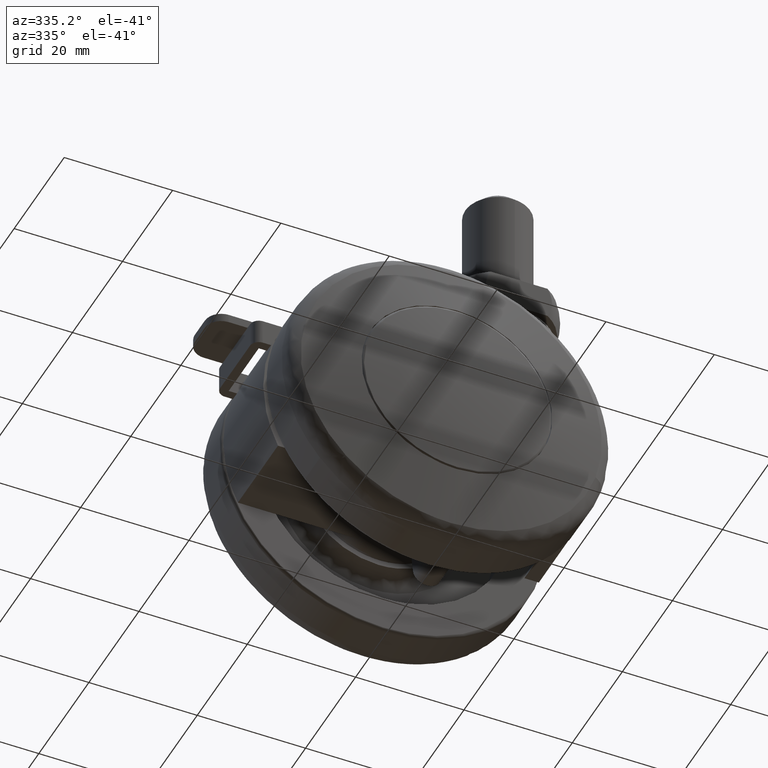
[diagram: clean part render]
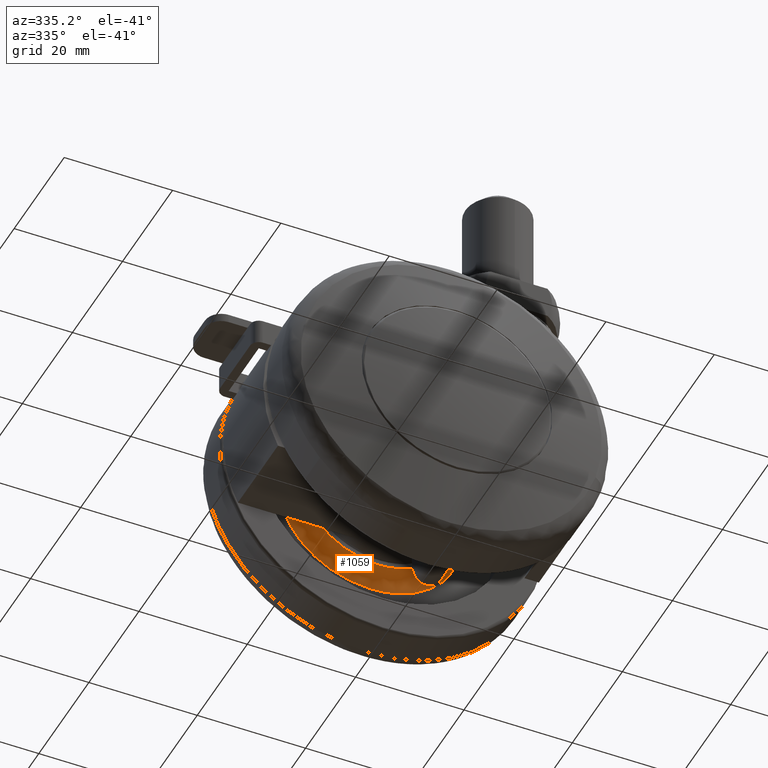
[diagram: same view with one face highlighted and labeled with its STEP entity id]
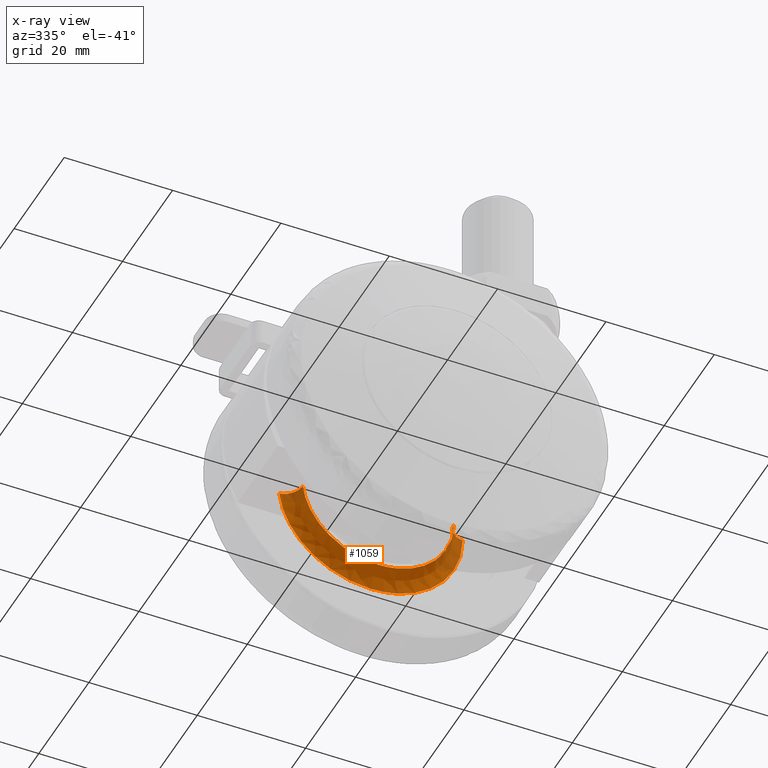
[diagram: x-ray of the same camera — body ghosted, the highlighted face saturated]
A machine part, auxiliary view. The second image highlights one B-rep face of the part: STEP entity #1059.
The next image is the same camera in x-ray: the body ghosted, the highlighted face saturated — about 15% of this face is hidden behind the body in this view.
In plain terms, the highlighted face is a freeform B-spline surface patch.
Its self-contained STEP definition (entity closure, byte-faithful):
#879=CARTESIAN_POINT('',(13.906362942982289,-11.000000000126439,-1.616499210655181));
#880=VERTEX_POINT('',#879);
#898=CARTESIAN_POINT('',(-14.0,-11.000000000116350,-8.674979E-016));
#899=VERTEX_POINT('',#898);
#913=CARTESIAN_POINT('',(-16.999999999257060,-14.0,1.051998E-014));
#914=VERTEX_POINT('',#913);
#915=CARTESIAN_POINT('',(-16.999999999257067,-13.999999999999998,1.051998E-014));
#916=CARTESIAN_POINT('',(-14.000000000232696,-13.999999998514125,3.522585E-016));
#917=CARTESIAN_POINT('',(-13.999999999999998,-11.000000000116348,-8.674979E-016));
#925=(BOUNDED_CURVE()B_SPLINE_CURVE(2,(#915,#916,#917),.UNSPECIFIED.,.F.,.U.)B_SPLINE_CURVE_WITH_KNOTS((3,3),(-1.726807299007670,-0.285995334123837),.UNSPECIFIED.)CURVE()GEOMETRIC_REPRESENTATION_ITEM()RATIONAL_B_SPLINE_CURVE((0.882788776036313,0.622603437843268,0.878205639026502))REPRESENTATION_ITEM(''));
#926=EDGE_CURVE('',#914,#899,#925,.T.);
#943=CARTESIAN_POINT('',(16.886297858333268,-14.0,-1.962891898697348));
#944=VERTEX_POINT('',#943);
#960=CARTESIAN_POINT('',(16.886297858333272,-14.000000000000002,-1.962891898697348));
#961=CARTESIAN_POINT('',(13.906362943242325,-13.999999998018970,-1.616499210608235));
#962=CARTESIAN_POINT('',(13.906362942982286,-11.000000000126438,-1.616499210655181));
#970=(BOUNDED_CURVE()B_SPLINE_CURVE(2,(#960,#961,#962),.UNSPECIFIED.,.F.,.U.)B_SPLINE_CURVE_WITH_KNOTS((3,3),(-1.726807298839076,-0.285995334130672),.UNSPECIFIED.)CURVE()GEOMETRIC_REPRESENTATION_ITEM()RATIONAL_B_SPLINE_CURVE((0.844728325025406,0.595760586839805,0.840342784898897))REPRESENTATION_ITEM(''));
#971=EDGE_CURVE('',#944,#880,#970,.T.);
#976=CARTESIAN_POINT('',(-17.208051895363688,-13.992777039613136,1.053654E-015));
#977=CARTESIAN_POINT('',(-17.208051895363681,-13.992777039613133,-17.208051895363681));
#978=CARTESIAN_POINT('',(-2.107309E-015,-13.992777039613136,-17.208051895363688));
#979=CARTESIAN_POINT('',(15.323627400220719,-13.992777039613134,-17.208051895363674));
#980=CARTESIAN_POINT('',(17.092958228482427,-13.992777039613129,-1.986914450318464));
#981=CARTESIAN_POINT('',(-13.766782131416743,-14.232007255352647,8.429444E-016));
#982=CARTESIAN_POINT('',(-13.766782131416740,-14.232007255352647,-13.766782131416740));
#983=CARTESIAN_POINT('',(-1.685889E-015,-14.232007255352647,-13.766782131416743));
#984=CARTESIAN_POINT('',(12.259205235119264,-14.232007255352649,-13.766782131416742));
#985=CARTESIAN_POINT('',(13.674704919754744,-14.232007255352645,-1.589570889117768));
#986=CARTESIAN_POINT('',(-14.007301085676549,-10.790827324424891,8.576715E-016));
#987=CARTESIAN_POINT('',(-14.007301085676549,-10.790827324424889,-14.007301085676545));
#988=CARTESIAN_POINT('',(-1.715343E-015,-10.790827324424891,-14.007301085676549));
#989=CARTESIAN_POINT('',(12.473385367779198,-10.790827324424892,-14.007301085676552));
#990=CARTESIAN_POINT('',(13.913615196369431,-10.790827324424889,-1.617342224809931));
#998=(BOUNDED_SURFACE()B_SPLINE_SURFACE(2,2,((#976,#981,#986),(#977,#982,#987),(#978,#983,#988),(#979,#984,#989),(#980,#985,#990)),.UNSPECIFIED.,.F.,.F.,.U.)B_SPLINE_SURFACE_WITH_KNOTS((3,2,3),(3,3),(0.0,28.511233908318729,54.741569103971962),(0.0,5.467111332740921),.UNSPECIFIED.)GEOMETRIC_REPRESENTATION_ITEM()RATIONAL_B_SPLINE_SURFACE(((0.910068206218876,0.595552946883686,0.905027191126598),(0.643515399959645,0.421119527297086,0.639950864003831),(0.910068206218876,0.595552946883686,0.905027191126598),(0.664839624460383,0.435074200864014,0.661156970173652),(0.870831633137517,0.569876347520538,0.866007955774126)))REPRESENTATION_ITEM('')SURFACE());
#999=CARTESIAN_POINT('',(0.0,-11.0,-14.0));
#1000=VERTEX_POINT('',#999);
#1001=CARTESIAN_POINT('',(0.0,-11.0,-14.0));
#1002=CARTESIAN_POINT('',(12.466883811439770,-11.0,-14.000000000000007));
#1003=CARTESIAN_POINT('',(13.906362942982298,-11.000000000126438,-1.616499210655181));
#1011=(BOUNDED_CURVE()B_SPLINE_CURVE(2,(#1001,#1002,#1003),.UNSPECIFIED.,.F.,.U.)B_SPLINE_CURVE_WITH_KNOTS((3,3),(0.0,0.229999999998148),.UNSPECIFIED.)CURVE()GEOMETRIC_REPRESENTATION_ITEM()RATIONAL_B_SPLINE_CURVE((1.0,0.730538238693794,0.956886118187014))REPRESENTATION_ITEM(''));
#1012=EDGE_CURVE('',#1000,#880,#1011,.T.);
#1013=ORIENTED_EDGE('',*,*,#1012,.T.);
#1014=ORIENTED_EDGE('',*,*,#971,.F.);
#1015=CARTESIAN_POINT('',(0.0,-14.0,-17.0));
#1016=VERTEX_POINT('',#1015);
#1017=CARTESIAN_POINT('',(0.0,-14.0,-17.0));
#1018=CARTESIAN_POINT('',(15.138358913604137,-13.999999999999993,-16.999999999999996));
#1019=CARTESIAN_POINT('',(16.886297858333265,-13.999999999999995,-1.962891898697348));
#1027=(BOUNDED_CURVE()B_SPLINE_CURVE(2,(#1017,#1018,#1019),.UNSPECIFIED.,.F.,.U.)B_SPLINE_CURVE_WITH_KNOTS((3,3),(0.0,0.229999999994962),.UNSPECIFIED.)CURVE()GEOMETRIC_REPRESENTATION_ITEM()RATIONAL_B_SPLINE_CURVE((1.0,0.730538238697526,0.956886118180744))REPRESENTATION_ITEM(''));
#1028=EDGE_CURVE('',#1016,#944,#1027,.T.);
#1029=ORIENTED_EDGE('',*,*,#1028,.F.);
#1030=CARTESIAN_POINT('',(-16.999999999257071,-14.000000000000011,1.051998E-014));
#1031=CARTESIAN_POINT('',(-17.000000000000021,-13.999999999999998,-17.000000000000007));
#1032=CARTESIAN_POINT('',(0.0,-14.0,-17.0));
#1040=(BOUNDED_CURVE()B_SPLINE_CURVE(2,(#1030,#1031,#1032),.UNSPECIFIED.,.F.,.U.)B_SPLINE_CURVE_WITH_KNOTS((3,3),(0.750000000000000,1.0),.UNSPECIFIED.)CURVE()GEOMETRIC_REPRESENTATION_ITEM()RATIONAL_B_SPLINE_CURVE((1.0,0.707106781186547,1.0))REPRESENTATION_ITEM(''));
#1041=EDGE_CURVE('',#914,#1016,#1040,.T.);
#1042=ORIENTED_EDGE('',*,*,#1041,.F.);
#1043=ORIENTED_EDGE('',*,*,#926,.T.);
#1044=CARTESIAN_POINT('',(-14.0,-11.000000000116350,-8.674979E-016));
#1045=CARTESIAN_POINT('',(-13.999999999999998,-11.0,-14.000000000000004));
#1046=CARTESIAN_POINT('',(0.0,-11.0,-14.0));
#1054=(BOUNDED_CURVE()B_SPLINE_CURVE(2,(#1044,#1045,#1046),.UNSPECIFIED.,.F.,.U.)B_SPLINE_CURVE_WITH_KNOTS((3,3),(0.750000000000000,1.0),.UNSPECIFIED.)CURVE()GEOMETRIC_REPRESENTATION_ITEM()RATIONAL_B_SPLINE_CURVE((1.0,0.707106781186547,1.0))REPRESENTATION_ITEM(''));
#1055=EDGE_CURVE('',#899,#1000,#1054,.T.);
#1056=ORIENTED_EDGE('',*,*,#1055,.T.);
#1057=EDGE_LOOP('',(#1013,#1014,#1029,#1042,#1043,#1056));
#1058=FACE_OUTER_BOUND('',#1057,.T.);
#1059=ADVANCED_FACE('',(#1058),#998,.F.);